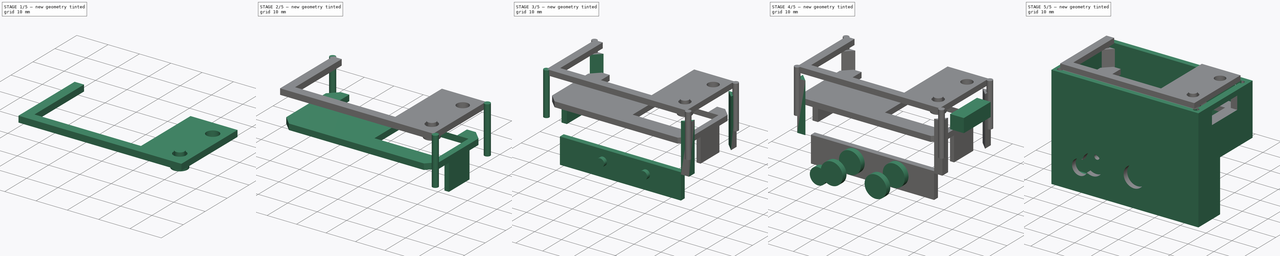
[diagram: build sequence overview — one tinted view per stage of 5, left to right]
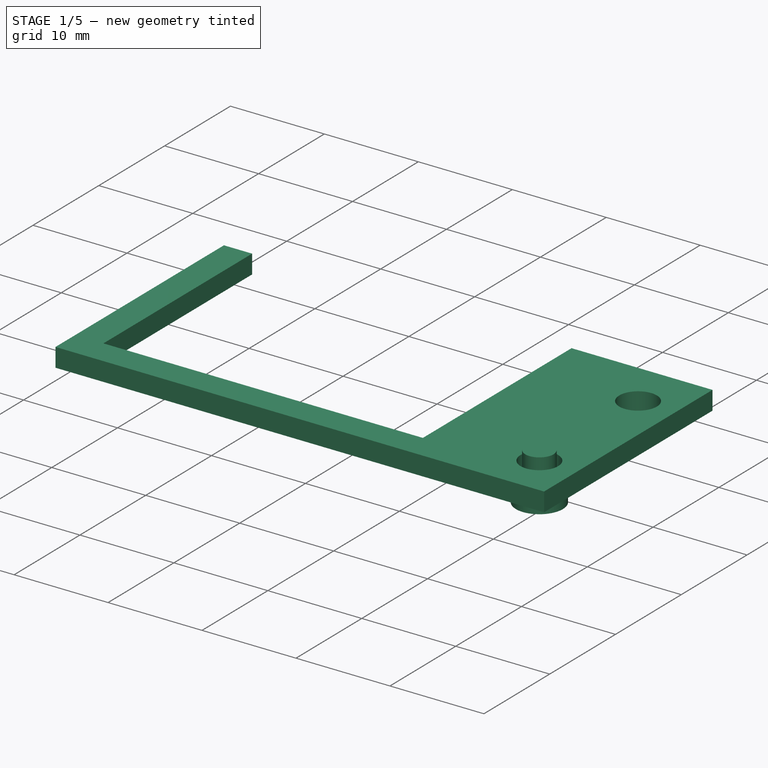
[diagram: stage 1 of 5 — iso view after this stage's code; geometry added in this stage tinted green]
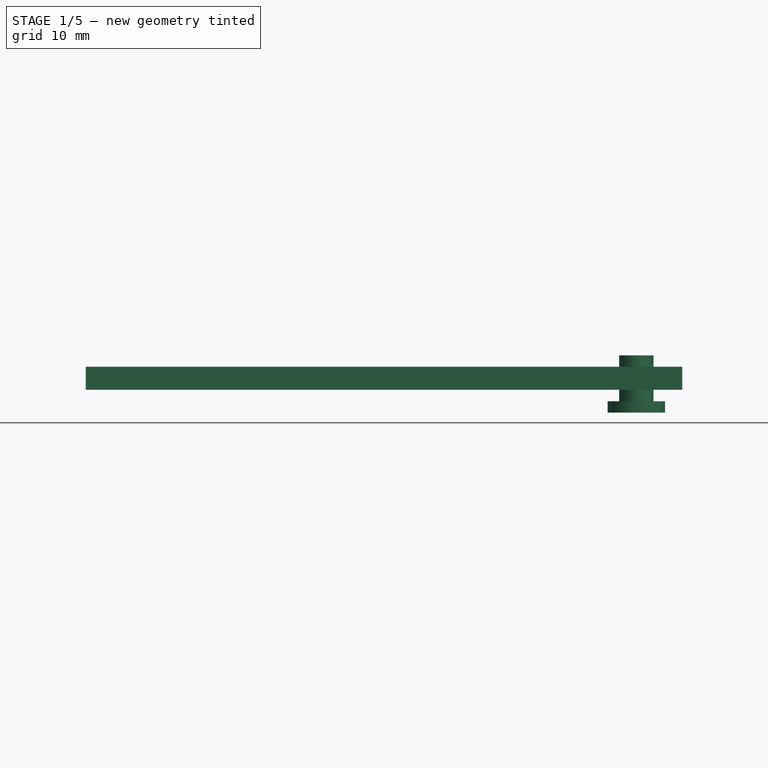
[diagram: stage 1 of 5 — front view after this stage's code; geometry added in this stage tinted green]
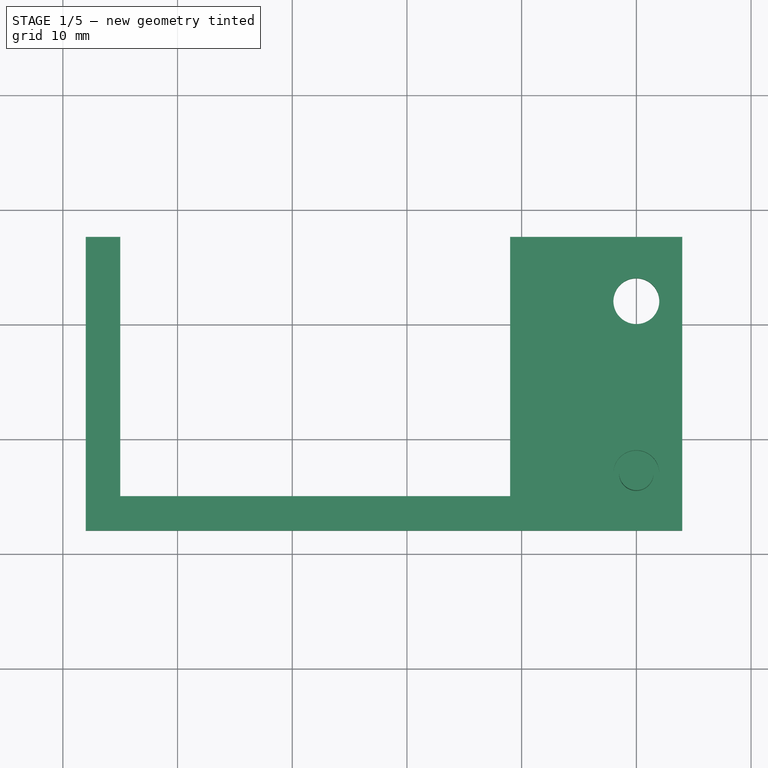
[diagram: stage 1 of 5 — top view after this stage's code; geometry added in this stage tinted green]
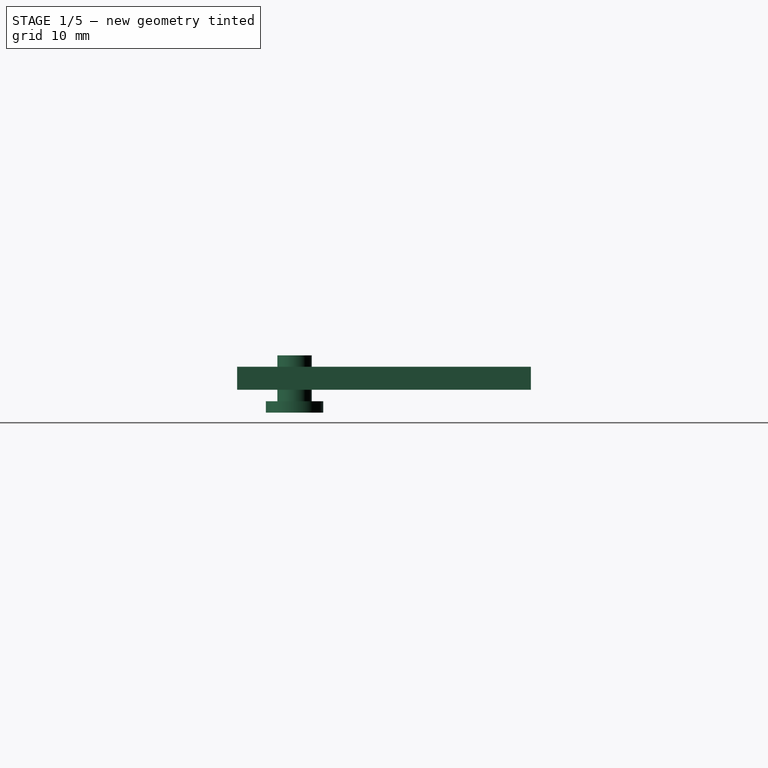
[diagram: stage 1 of 5 — right view after this stage's code; geometry added in this stage tinted green]
FCSTD DOCUMENT  (FreeCAD 0.20R29177 +426 (Git))
Label: CortinasMalagaLaser
License: All rights reserved
LicenseURL: http://en.wikipedia.org/wiki/All_rights_reserved
objects: Part::Cylinder×16, Part::Box×12, Part::MultiFuse×7, Part::Wedge×4, Part::Cut×3, Part::Chamfer×1, Sketcher::SketchObject×1, PartDesign::FeatureBase×1, PartDesign::Pocket×1, PartDesign::Body×1
note: 48 computed .brp shape members not serialized (recipe doc carries the construction recipe); baked Part::Feature solids carry a one-line shape summary decoded from their .brp

FEATURE [Part::Box] Box003  label="Cover"
  AttacherType = Attacher::AttachEngine3D
  Height = 2
  Length = 52
  Placement = pos=(2,2,40) rot=(0,0,1;0rad)
  Width = 25.6
FEATURE [Part::Box] Box006  label="Screen_hole"
  AttacherType = Attacher::AttachEngine3D
  Height = 2
  Length = 34
  Placement = pos=(5,5,40) rot=(0,0,1;0rad)
  Width = 23
FEATURE [Part::Cylinder] Cylinder008  label="button_hole"
  Angle = 360
  AttacherType = Attacher::AttachEngine3D
  FirstAngle = 0
  Height = 4
  Placement = pos=(50,7,38) rot=(0,0,1;0rad)
  Radius = 2
  SecondAngle = 0
FEATURE [Part::Cylinder] Cylinder013  label="button"
  Angle = 360
  AttacherType = Attacher::AttachEngine3D
  FirstAngle = 0
  Height = 5
  Placement = pos=(50,7,37) rot=(0,0,1;0rad)
  Radius = 1.5
  SecondAngle = 0
FEATURE [Part::Cylinder] Cylinder014  label="button_base"
  Angle = 360
  AttacherType = Attacher::AttachEngine3D
  FirstAngle = 0
  Height = 1
  Placement = pos=(50,7,37) rot=(0,0,1;0rad)
  Radius = 2.5
  SecondAngle = 0
FEATURE [Part::MultiFuse] Fusion009  label="button001"
  Placement = pos=(0,0,1) rot=(0,0,1;0rad)
  Shapes = -> [Cylinder013,Cylinder014]
FEATURE [Part::Cylinder] Cylinder015  label="button_hole001"
  Angle = 360
  AttacherType = Attacher::AttachEngine3D
  FirstAngle = 0
  Height = 4
  Placement = pos=(50,22,38) rot=(0,0,1;0rad)
  Radius = 2
  SecondAngle = 0
FEATURE [Part::MultiFuse] Fusion004
  Shapes = -> [Box006,Cylinder008,Cylinder015]
FEATURE [Part::Cut] Cut  label="cover"
  Base = -> Box003
  Tool = -> Fusion004
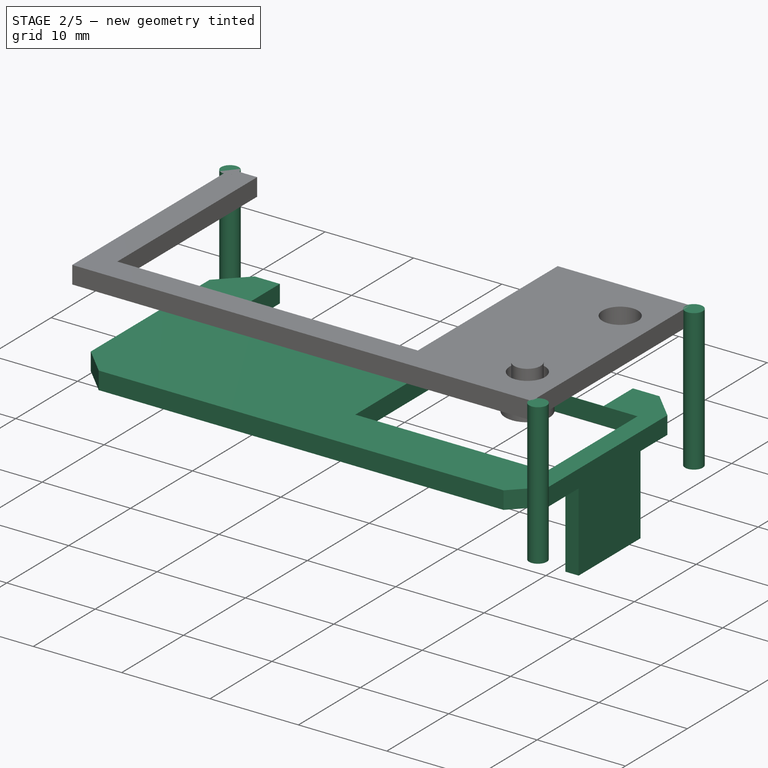
[diagram: stage 2 of 5 — iso view after this stage's code; geometry added in this stage tinted green]
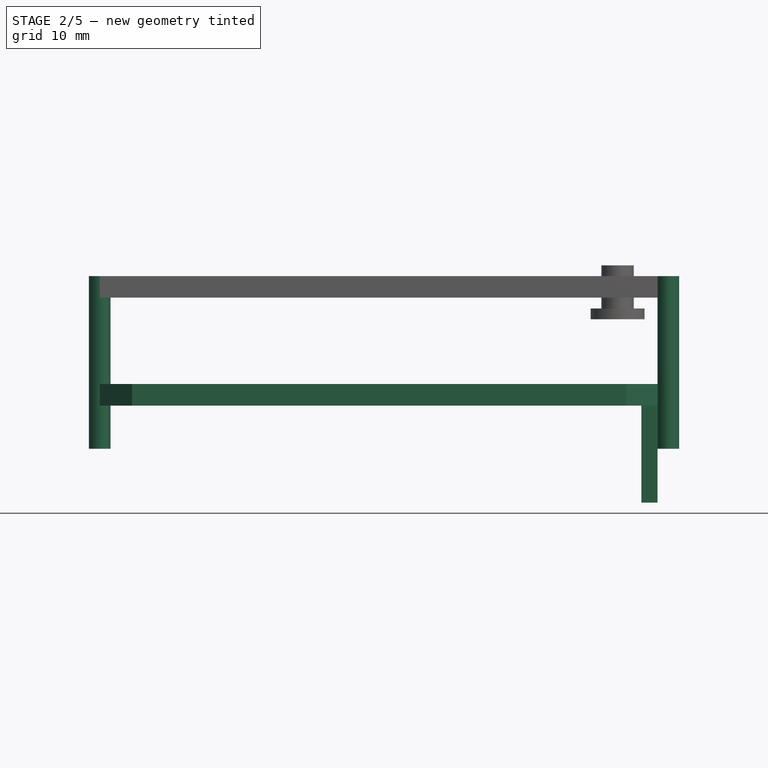
[diagram: stage 2 of 5 — front view after this stage's code; geometry added in this stage tinted green]
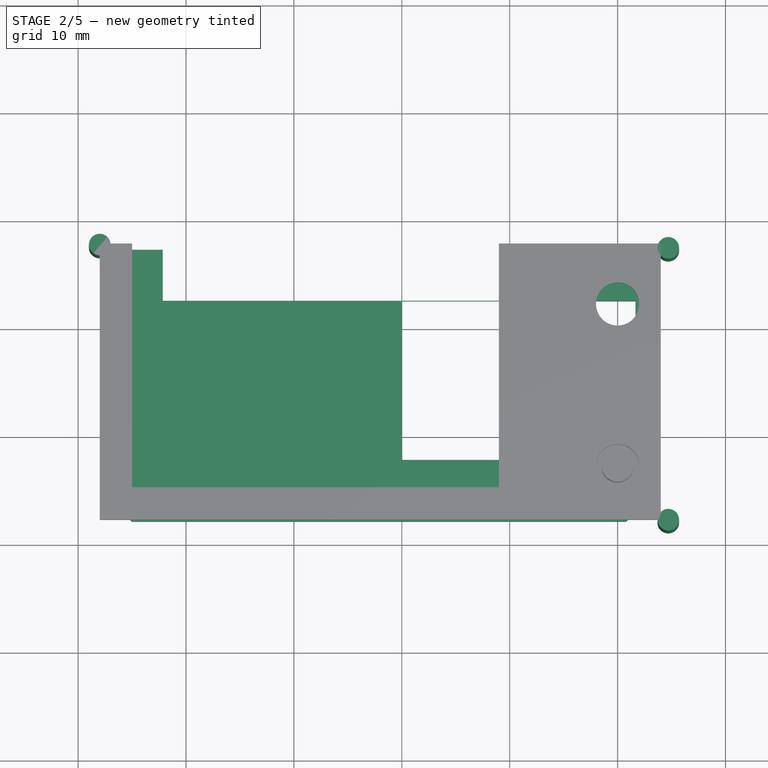
[diagram: stage 2 of 5 — top view after this stage's code; geometry added in this stage tinted green]
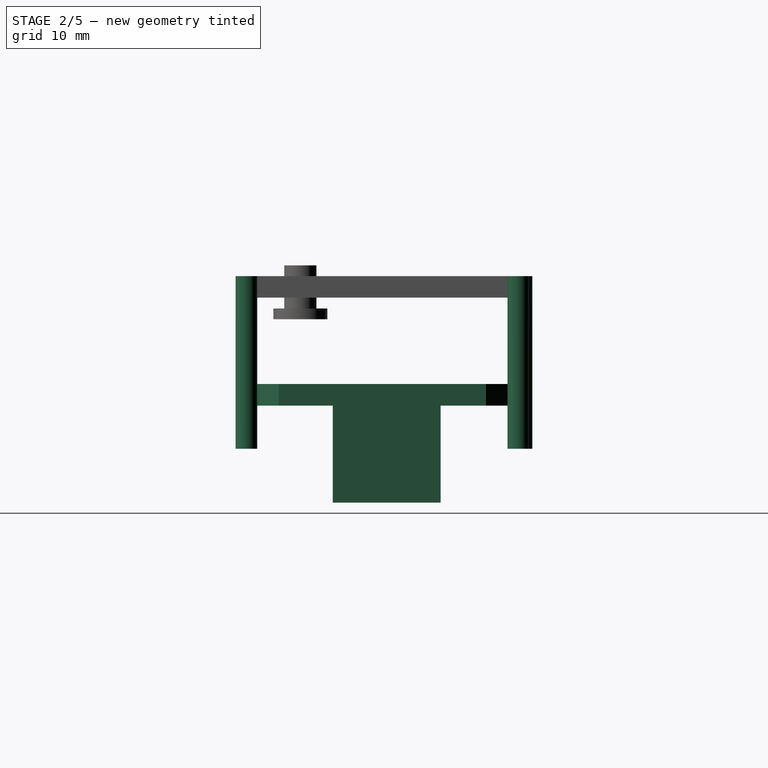
[diagram: stage 2 of 5 — right view after this stage's code; geometry added in this stage tinted green]
FEATURE [Part::Cylinder] Cylinder010  label="cover_screw2"
  Angle = 360
  AttacherType = Attacher::AttachEngine3D
  FirstAngle = 0
  Height = 16
  Placement = pos=(2,27.5,26) rot=(0,0,1;0rad)
  Radius = 1
  SecondAngle = 0
FEATURE [Part::Cylinder] Cylinder011  label="cover_screw003"
  Angle = 360
  AttacherType = Attacher::AttachEngine3D
  FirstAngle = 0
  Height = 16
  Placement = pos=(54.7,2,26) rot=(0,0,1;0rad)
  Radius = 1
  SecondAngle = 0
FEATURE [Part::Cylinder] Cylinder012  label="cover_screw004"
  Angle = 360
  AttacherType = Attacher::AttachEngine3D
  FirstAngle = 0
  Height = 16
  Placement = pos=(54.7,27.2,26) rot=(0,0,1;0rad)
  Radius = 1
  SecondAngle = 0
FEATURE [Part::Box] Box010  label="Cover001"
  AttacherType = Attacher::AttachEngine3D
  Height = 2
  Length = 51.8
  Placement = pos=(2,2,30) rot=(0,0,1;0rad)
  Width = 25.2
FEATURE [Part::Chamfer] Chamfer
  Base = -> Box010
  Edges = 4 edges r=3: [Edge1,Edge3,Edge5,Edge7]
FEATURE [Sketcher::SketchObject] Sketch
  FullyConstrained = false
  MapMode = 5
  Placement = pos=(0,0,30) rot=(1,0,0;3.14159rad)
  Support = -> [Chamfer]
  sketch-geometry (8):
    g0: LineSegment StartX=30.0267 StartY=-7.72225 StartZ=0 EndX=51.6615 EndY=-7.72225 EndZ=0
    g1: LineSegment StartX=51.6615 StartY=-7.72225 StartZ=0 EndX=51.6615 EndY=-22.4283 EndZ=0
    g2: LineSegment StartX=51.6615 StartY=-22.4283 StartZ=0 EndX=30.0267 EndY=-22.4283 EndZ=0
    g3: LineSegment StartX=30.0267 StartY=-22.4283 StartZ=0 EndX=30.0267 EndY=-7.72225 EndZ=0
    g4: LineSegment StartX=7.84669 StartY=-22.4691 StartZ=0 EndX=47.7933 EndY=-22.4691 EndZ=0
    g5: LineSegment StartX=47.7933 StartY=-22.4691 StartZ=0 EndX=47.7933 EndY=-27.2061 EndZ=0
    g6: LineSegment StartX=47.7933 StartY=-27.2061 StartZ=0 EndX=7.84669 EndY=-27.2061 EndZ=0
    g7: LineSegment StartX=7.84669 StartY=-27.2061 StartZ=0 EndX=7.84669 EndY=-22.4691 EndZ=0
  constraints (16):
    c: Coincident(g0,g1)
    c: Coincident(g1,g2)
    c: Coincident(g2,g3)
    c: Coincident(g3,g0)
    c: Horizontal(g0)
    c: Horizontal(g2)
    c: Vertical(g1)
    c: Vertical(g3)
    c: Coincident(g4,g5)
    c: Coincident(g5,g6)
    c: Coincident(g6,g7)
    c: Coincident(g7,g4)
    c: Horizontal(g4)
    c: Horizontal(g6)
    c: Vertical(g5)
    c: Vertical(g7)
FEATURE [PartDesign::FeatureBase] BaseFeature
  BaseFeature = -> Chamfer
FEATURE [PartDesign::Pocket] Pocket
  BaseFeature = -> BaseFeature
  Direction = (0,0,1)
  Length = 3
  Length2 = 5
  Profile = -> Sketch
  ReferenceAxis = -> Sketch [N_Axis]
  Type = 0
FEATURE [PartDesign::Body] Body
  BaseFeature = -> Chamfer
  Group = -> [BaseFeature,Sketch,Pocket]
  Origin = -> Origin
  Tip = -> Pocket
FEATURE [Part::Box] Box011  label="controler_support001"
  AttacherType = Attacher::AttachEngine3D
  Height = 9
  Length = 1.5
  Placement = pos=(52.2,10,21) rot=(0,0,1;0rad)
  Width = 10
FEATURE [Part::MultiFuse] Fusion008  label="bat_controller_sep"
  Shapes = -> [Body,Box011]
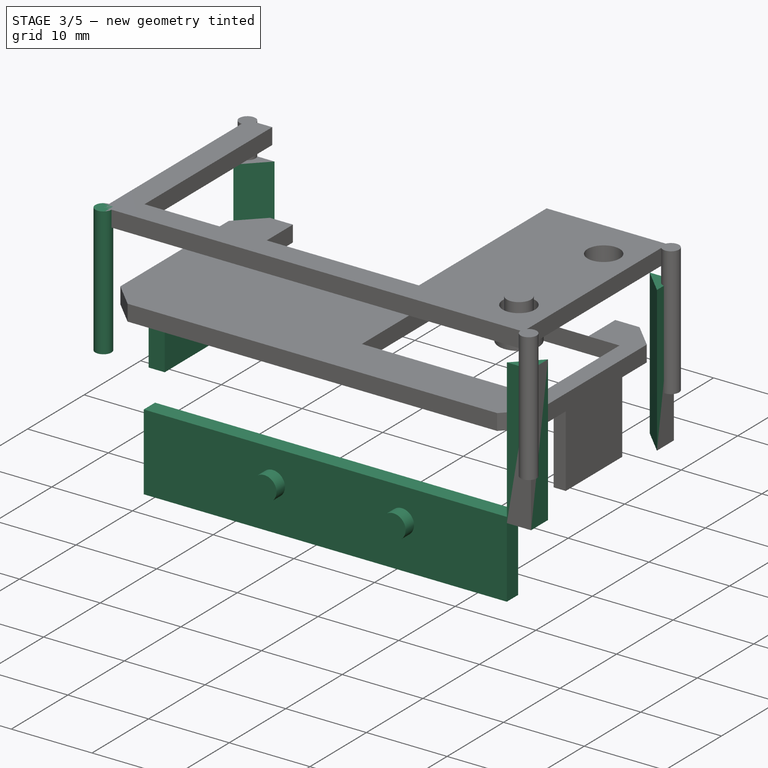
[diagram: stage 3 of 5 — iso view after this stage's code; geometry added in this stage tinted green]
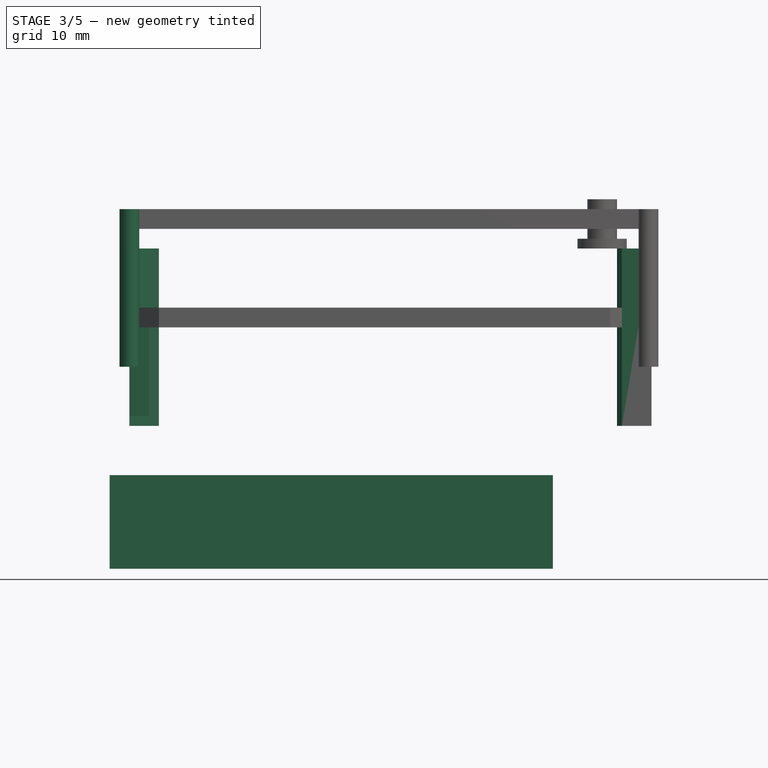
[diagram: stage 3 of 5 — front view after this stage's code; geometry added in this stage tinted green]
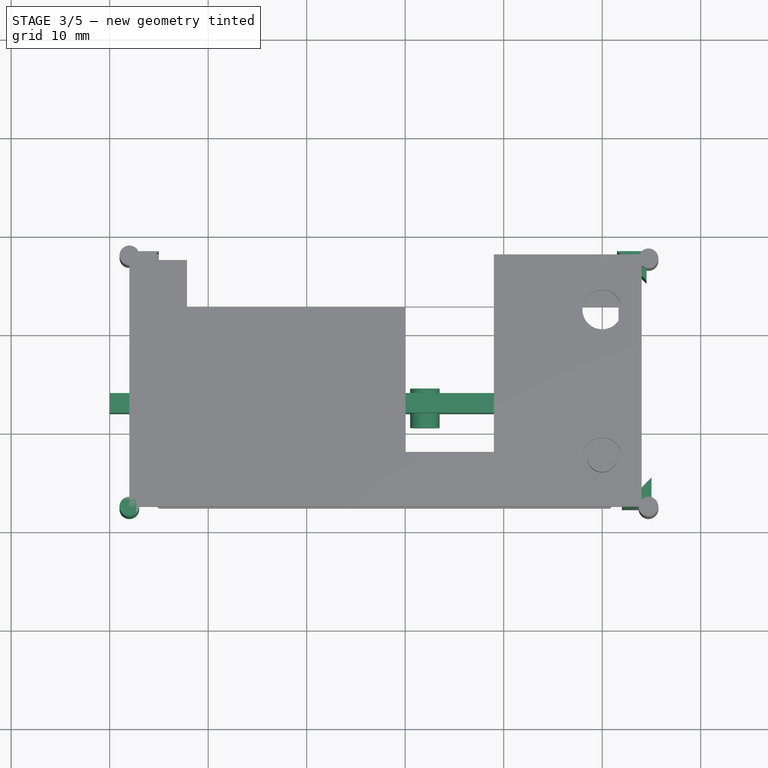
[diagram: stage 3 of 5 — top view after this stage's code; geometry added in this stage tinted green]
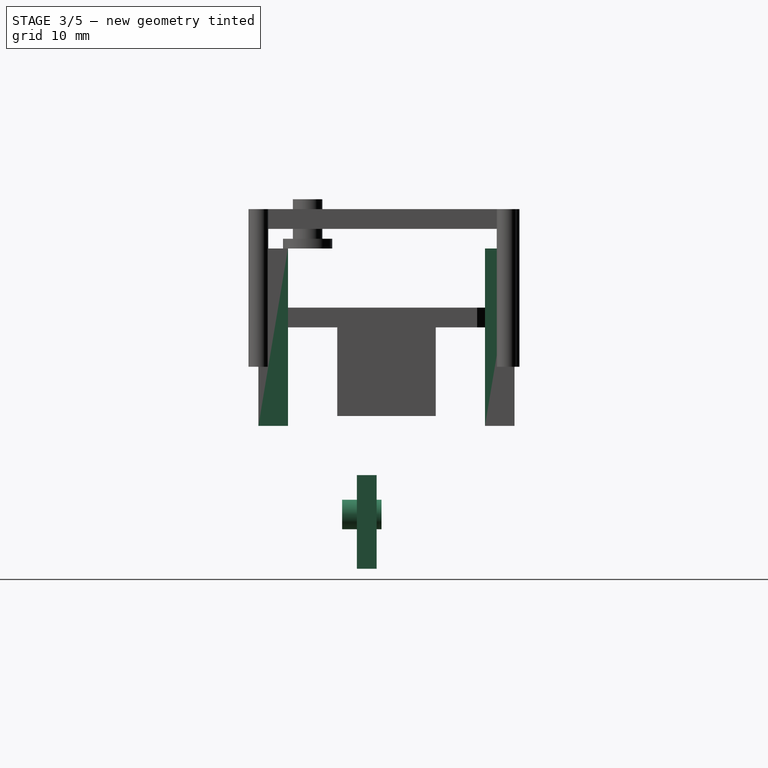
[diagram: stage 3 of 5 — right view after this stage's code; geometry added in this stage tinted green]
FEATURE [Part::Wedge] Wedge001  label="cover_suppport_back2"
  AttacherType = Attacher::AttachEngine3D
  Placement = pos=(2,28,20) rot=(0,0,-1;1.5708rad)
  X2max = 0
  X2min = 0
  Xmax = 3
  Xmin = 0
  Ymax = 3
  Ymin = 0
  Z2max = 18
  Z2min = 0
  Zmax = 18
  Zmin = 0
FEATURE [Part::Box] Box007  label="controler_support"
  AttacherType = Attacher::AttachEngine3D
  Height = 9
  Length = 2
  Placement = pos=(2,10,21) rot=(0,0,1;0rad)
  Width = 10
FEATURE [Part::Box] Box009  label="table_hold"
  AttacherType = Attacher::AttachEngine3D
  Height = 9.5
  Length = 45
  Placement = pos=(0,12,5.5) rot=(0,0,1;0rad)
  Width = 2
FEATURE [Part::Cylinder] Cylinder005  label="table1_screw"
  Angle = 360
  AttacherType = Attacher::AttachEngine3D
  FirstAngle = 0
  Height = 4
  Placement = pos=(16,14.5,11) rot=(1,0,0;1.5708rad)
  Radius = 1.5
  SecondAngle = 0
FEATURE [Part::Cylinder] Cylinder007  label="table2_screw"
  Angle = 360
  AttacherType = Attacher::AttachEngine3D
  FirstAngle = 0
  Height = 4
  Placement = pos=(32,14.5,11) rot=(1,0,0;1.5708rad)
  Radius = 1.5
  SecondAngle = 0
FEATURE [Part::Wedge] Wedge002  label="cover_suppport_front1"
  AttacherType = Attacher::AttachEngine3D
  Placement = pos=(54.5,28,20) rot=(0,0,1;3.14159rad)
  X2max = 0
  X2min = 0
  Xmax = 3
  Xmin = 0
  Ymax = 3
  Ymin = 0
  Z2max = 18
  Z2min = 0
  Zmax = 18
  Zmin = 0
FEATURE [Part::Wedge] Wedge003  label="cover_suppport_front2"
  AttacherType = Attacher::AttachEngine3D
  Placement = pos=(55,2,20) rot=(0,0,1;1.5708rad)
  X2max = 0
  X2min = 0
  Xmax = 3
  Xmin = 0
  Ymax = 3
  Ymin = 0
  Z2max = 18
  Z2min = 0
  Zmax = 18
  Zmin = 0
FEATURE [Part::Cylinder] Cylinder009  label="cover_screw1"
  Angle = 360
  AttacherType = Attacher::AttachEngine3D
  FirstAngle = 0
  Height = 16
  Placement = pos=(2,2,26) rot=(0,0,1;0rad)
  Radius = 1
  SecondAngle = 0
FEATURE [Part::MultiFuse] Fusion007  label="screws"
  Shapes = -> [Cylinder005,Cylinder007,Cylinder009,Cylinder010,Cylinder011,Cylinder012]
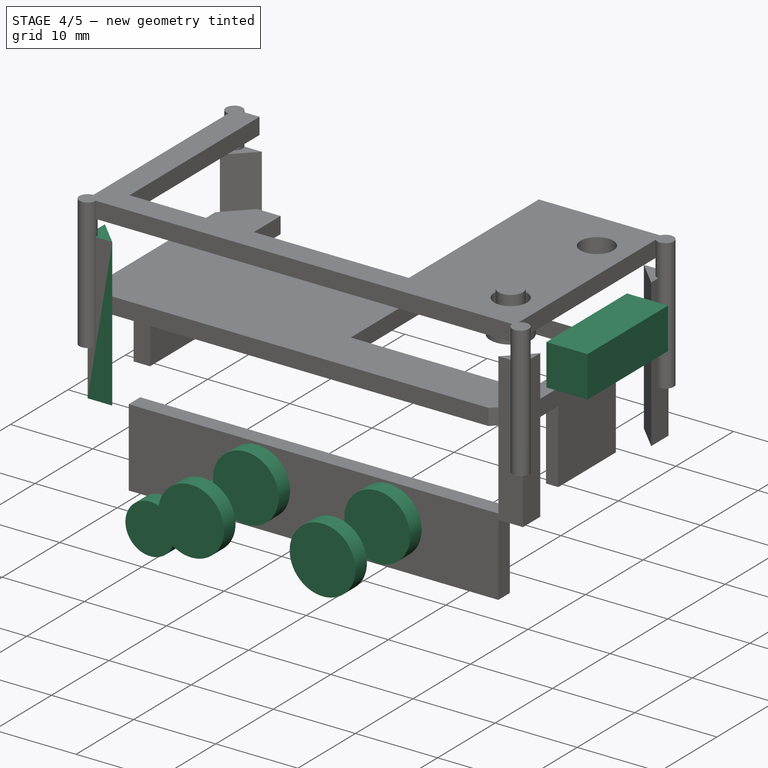
[diagram: stage 4 of 5 — iso view after this stage's code; geometry added in this stage tinted green]
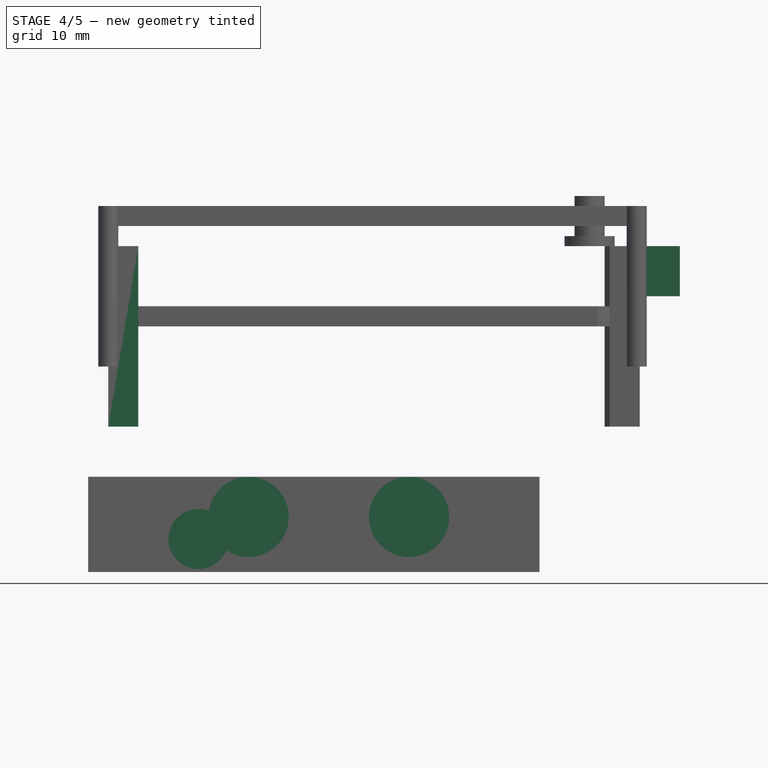
[diagram: stage 4 of 5 — front view after this stage's code; geometry added in this stage tinted green]
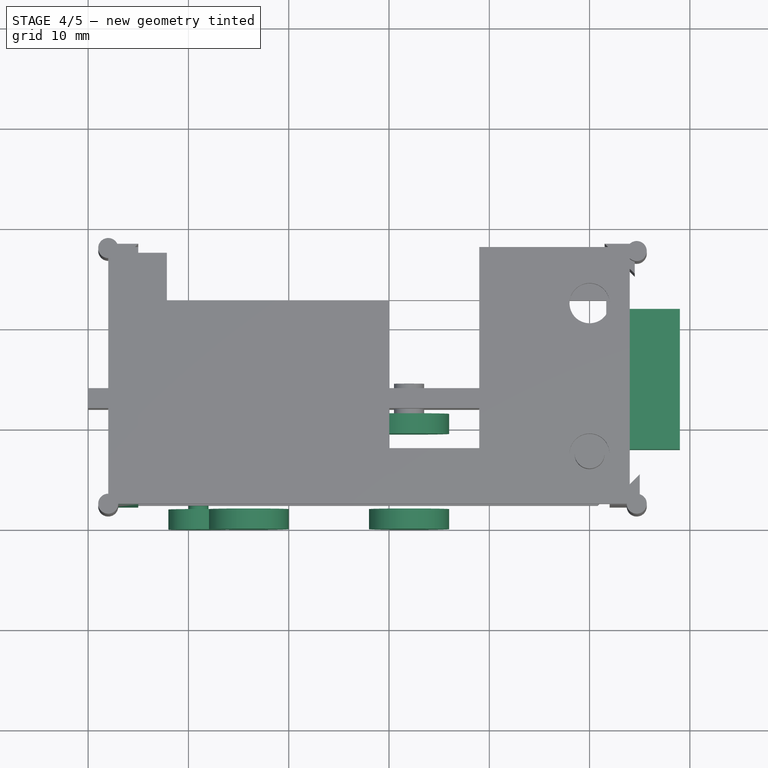
[diagram: stage 4 of 5 — top view after this stage's code; geometry added in this stage tinted green]
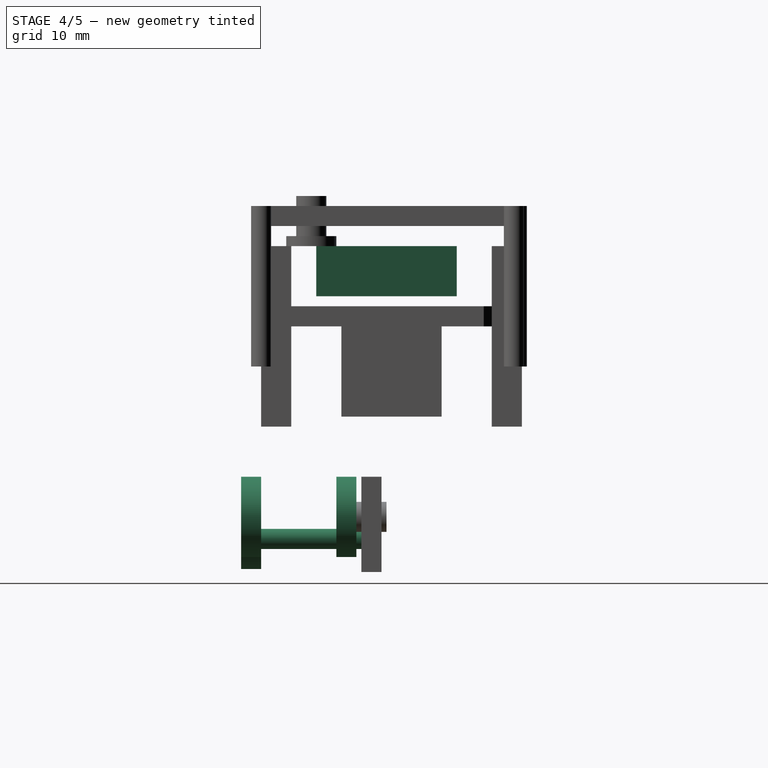
[diagram: stage 4 of 5 — right view after this stage's code; geometry added in this stage tinted green]
FEATURE [Part::Wedge] Wedge  label="cover_support_back1"
  AttacherType = Attacher::AttachEngine3D
  Placement = pos=(2,2,20) rot=(0,0,1;0rad)
  X2max = 0
  X2min = 0
  Xmax = 3
  Xmin = 0
  Ymax = 3
  Ymin = 0
  Z2max = 18
  Z2min = 0
  Zmax = 18
  Zmin = 0
FEATURE [Part::Box] Box008  label="usb_hole"
  AttacherType = Attacher::AttachEngine3D
  Height = 5
  Length = 5
  Placement = pos=(54,7.5,33) rot=(0,0,1;0rad)
  Width = 14
FEATURE [Part::Cylinder] Cylinder  label="laser_screw_hole"
  Angle = 360
  AttacherType = Attacher::AttachEngine3D
  FirstAngle = 0
  Height = 14
  Placement = pos=(11,14,8.8) rot=(1,0,0;1.5708rad)
  Radius = 1
  SecondAngle = 0
FEATURE [Part::Cylinder] Cylinder001  label="table1_screw_hole"
  Angle = 360
  AttacherType = Attacher::AttachEngine3D
  FirstAngle = 0
  Height = 2
  Placement = pos=(16,2,11) rot=(1,0,0;1.5708rad)
  Radius = 4
  SecondAngle = 0
FEATURE [Part::Cylinder] Cylinder002  label="table2_screw_hole"
  Angle = 360
  AttacherType = Attacher::AttachEngine3D
  FirstAngle = 0
  Height = 2
  Placement = pos=(32,2,11) rot=(1,0,0;1.5708rad)
  Radius = 4
  SecondAngle = 0
FEATURE [Part::Cylinder] Cylinder003  label="laser_screw_hole001"
  Angle = 360
  AttacherType = Attacher::AttachEngine3D
  FirstAngle = 0
  Height = 2
  Placement = pos=(11,2,8.8) rot=(1,0,0;1.5708rad)
  Radius = 3
  SecondAngle = 0
FEATURE [Part::Cylinder] Cylinder004  label="table1_screw_base_hole001"
  Angle = 360
  AttacherType = Attacher::AttachEngine3D
  FirstAngle = 0
  Height = 2
  Placement = pos=(16,11.5,11) rot=(1,0,0;1.5708rad)
  Radius = 4
  SecondAngle = 0
FEATURE [Part::Cylinder] Cylinder006  label="table2_screw_base_hole001"
  Angle = 360
  AttacherType = Attacher::AttachEngine3D
  FirstAngle = 0
  Height = 2
  Placement = pos=(32,11.5,11) rot=(1,0,0;1.5708rad)
  Radius = 4
  SecondAngle = 0
FEATURE [Part::MultiFuse] Fusion005  label="supports"
  Shapes = -> [Wedge003,Wedge002,Wedge001,Wedge,Box007,Box009]
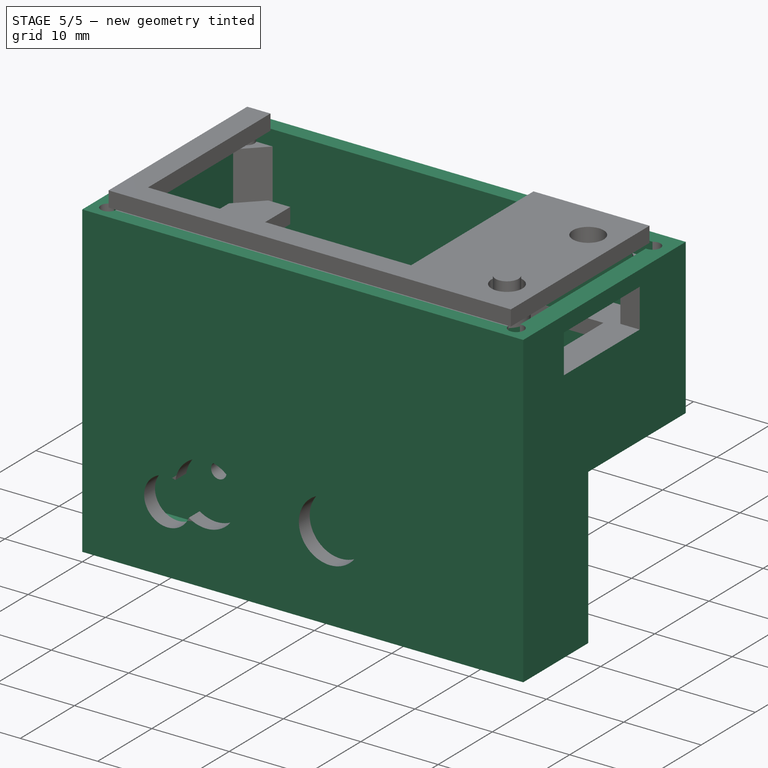
[diagram: stage 5 of 5 — iso view after this stage's code; geometry added in this stage tinted green]
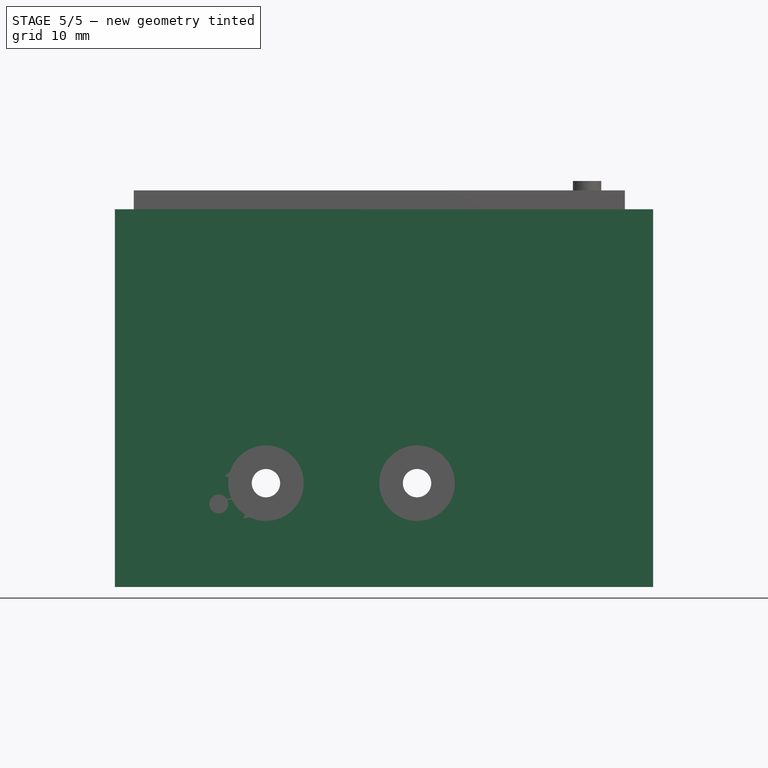
[diagram: stage 5 of 5 — front view after this stage's code; geometry added in this stage tinted green]
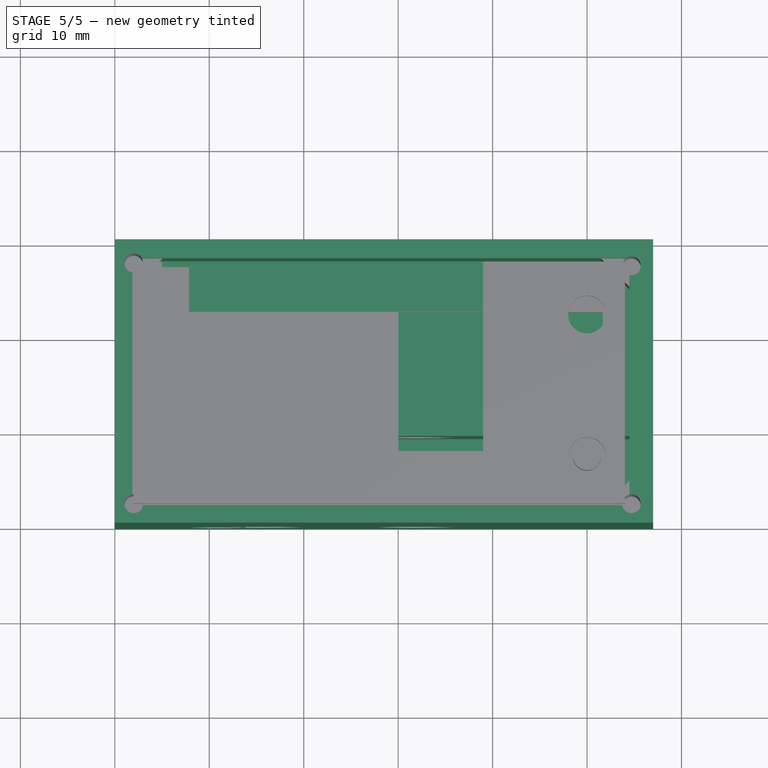
[diagram: stage 5 of 5 — top view after this stage's code; geometry added in this stage tinted green]
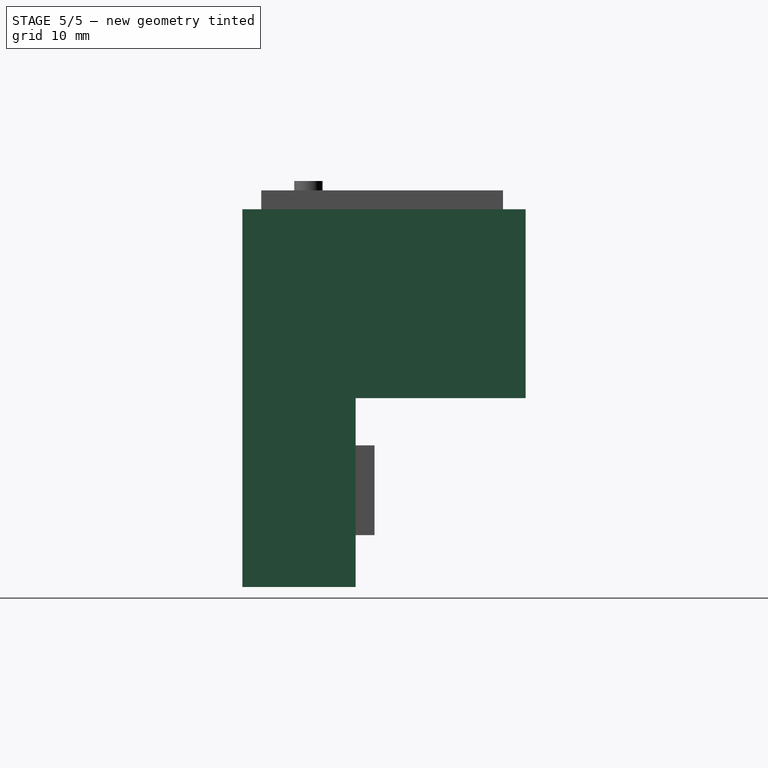
[diagram: stage 5 of 5 — right view after this stage's code; geometry added in this stage tinted green]
FEATURE [Part::Box] Box  label="main_block"
  AttacherType = Attacher::AttachEngine3D
  Height = 40
  Length = 57
  Width = 30
FEATURE [Part::Box] Box001  label="L_hole"
  AttacherType = Attacher::AttachEngine3D
  Height = 20
  Length = 57
  Placement = pos=(0,12,0) rot=(0,0,1;0rad)
  Width = 18
FEATURE [Part::Box] Box002  label="Laser_hole"
  AttacherType = Attacher::AttachEngine3D
  Height = 17.5
  Length = 55
  Placement = pos=(0,2,2) rot=(0,0,1;0rad)
  Width = 7.5
FEATURE [Part::Box] Box004  label="Laser2_hole"
  AttacherType = Attacher::AttachEngine3D
  Height = 2
  Length = 49.5
  Placement = pos=(5,2,19.5) rot=(0,0,1;0rad)
  Width = 7.5
FEATURE [Part::Box] Box005  label="controler_bat_hole001"
  AttacherType = Attacher::AttachEngine3D
  Height = 21
  Length = 52.5
  Placement = pos=(2,2,21) rot=(0,0,1;0rad)
  Width = 26
FEATURE [Part::MultiFuse] Fusion
  Shapes = -> [Box001,Box002,Box004,Box005,Box008,Cylinder,Cylinder001,Cylinder002,Cylinder003,Cylinder004,Cylinder006]
FEATURE [Part::Cut] Cut001  label="box_base"
  Base = -> Box
  Tool = -> Fusion
FEATURE [Part::MultiFuse] Fusion006  label="box_without_scrws"
  Shapes = -> [Cut001,Fusion005]
FEATURE [Part::Cut] Cut002  label="case"
  Base = -> Fusion006
  Tool = -> Fusion007
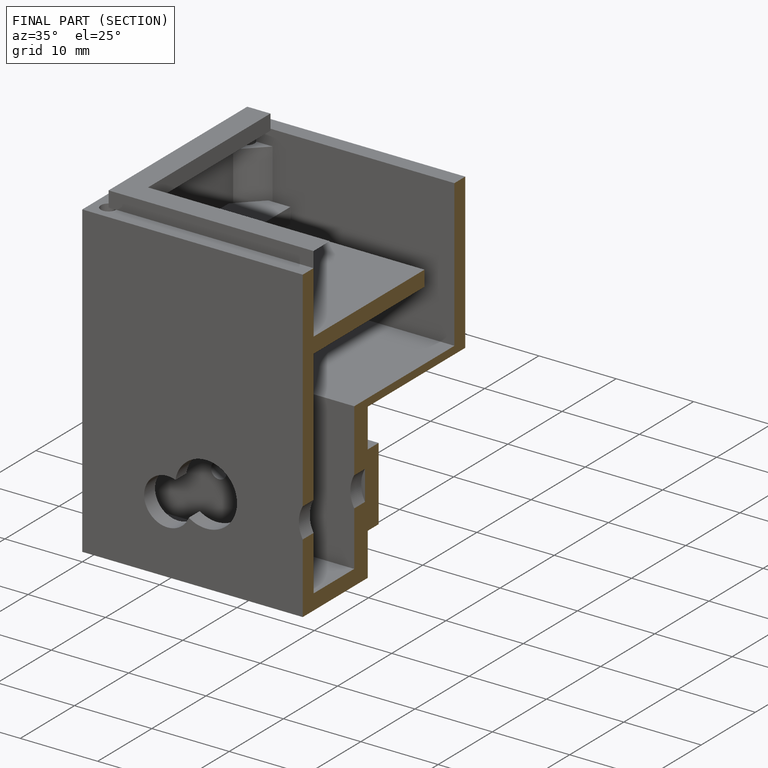
[diagram: finished part — half-section view (interior)]
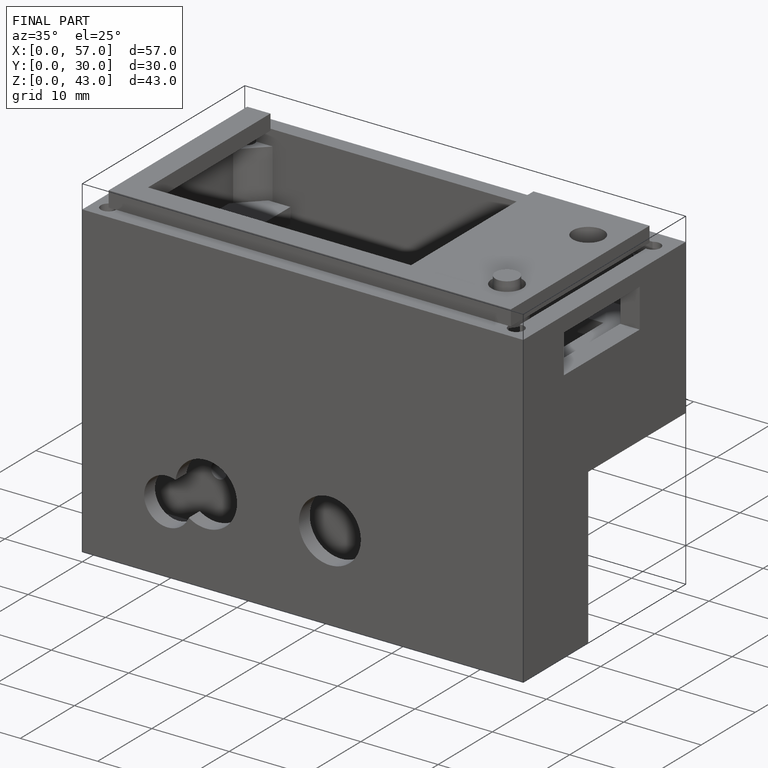
[diagram: finished part — iso view with bounding-box wireframe]
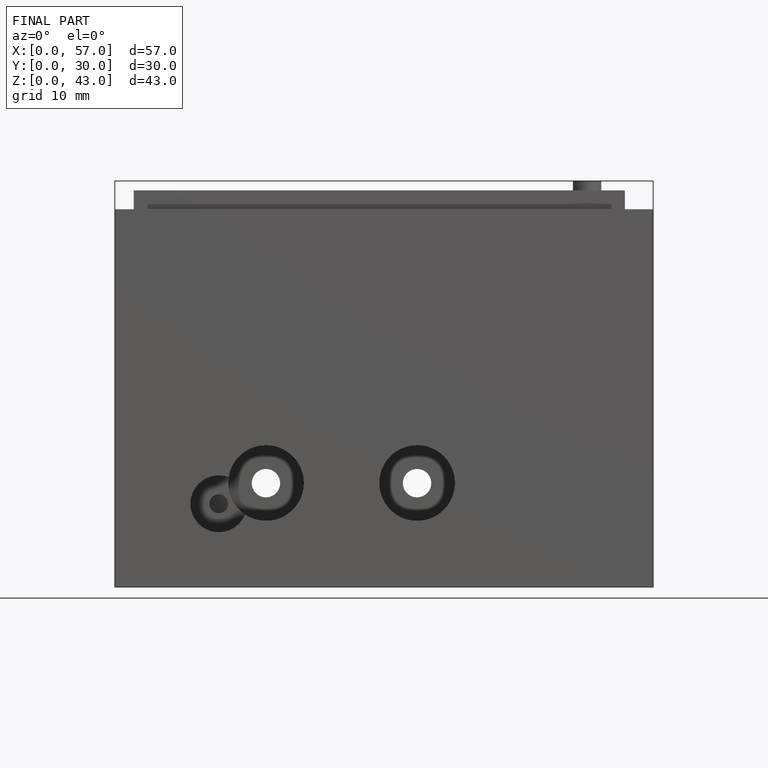
[diagram: finished part — front view with bounding-box wireframe]
